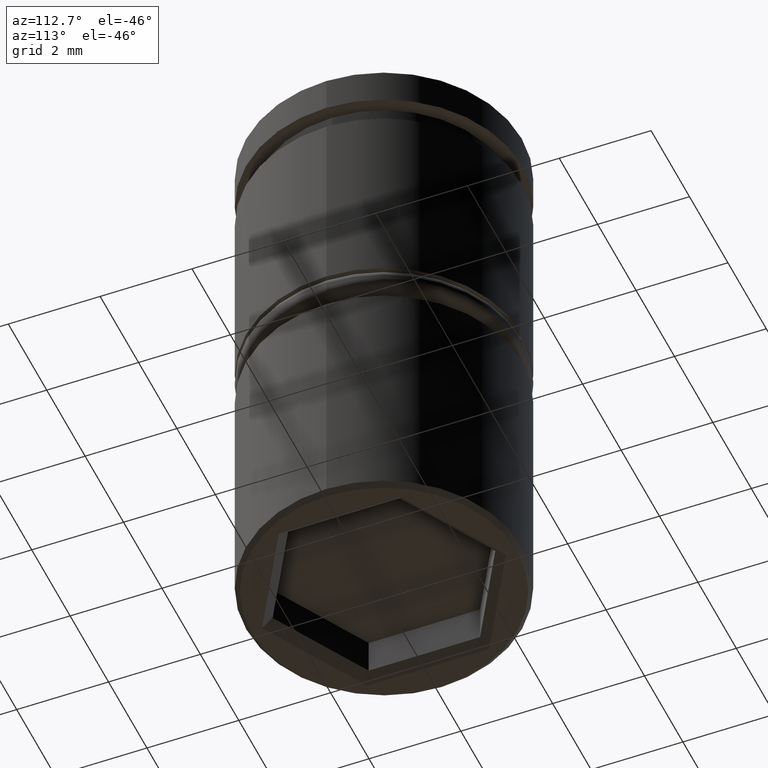
[diagram: clean part render]
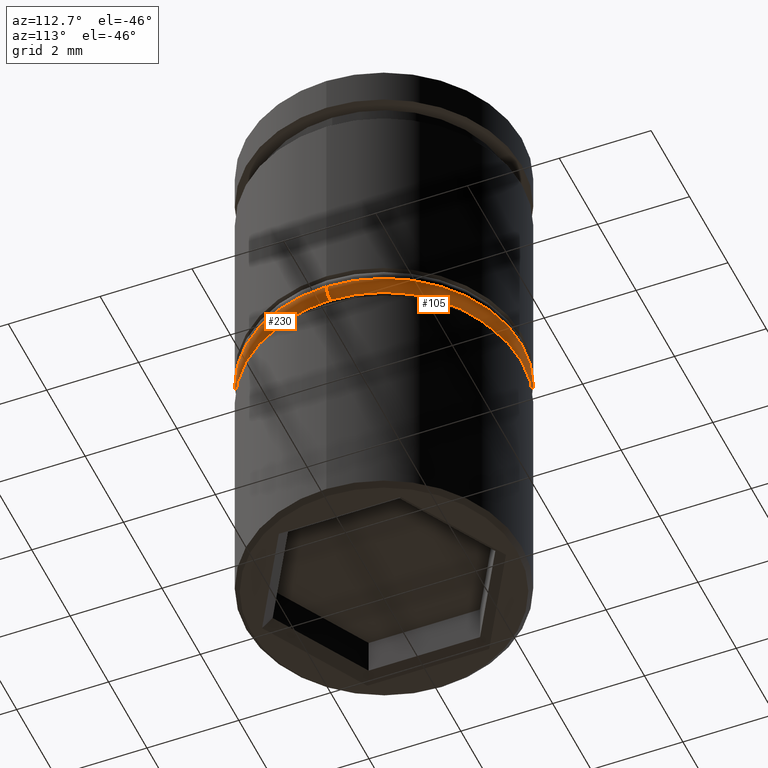
[diagram: same view with one multi-face feature highlighted, each face labeled with its STEP entity id]
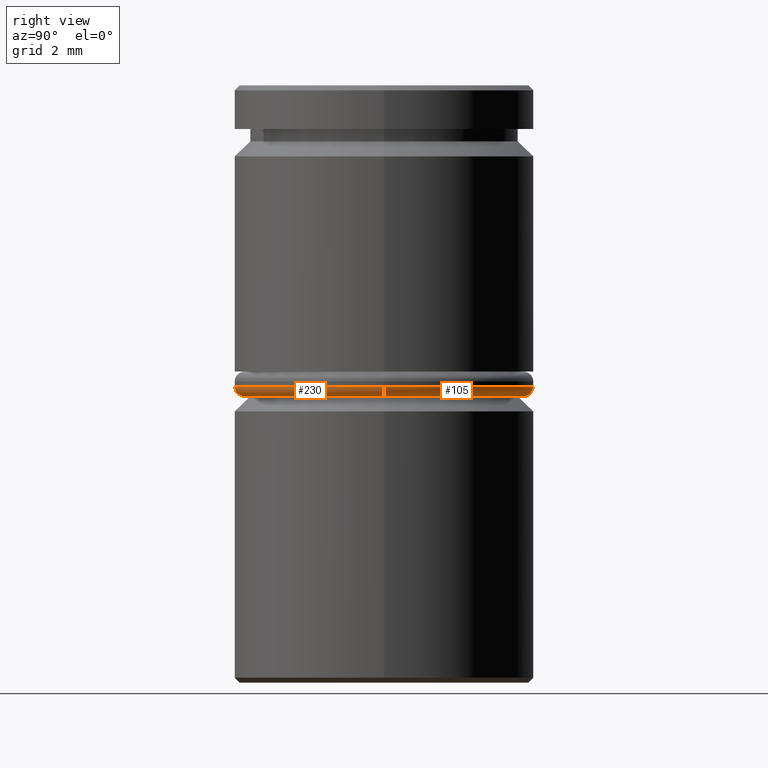
[diagram: same view with one multi-face feature highlighted, each face labeled with its STEP entity id]
A machine part, auxiliary view. The highlighted faces form ONE feature: a constant-radius fillet chain: 2 tangent blend faces with common blend radius 0.2 mm. The faces share edges in the B-rep.
A second angle (right view) of the same feature is appended — it is thin or edge-on in the first view.
Their STEP definitions:
[1] entity #230 (Torus):
#9 = AXIS2_PLACEMENT_3D ( 'NONE', #42, #300, #332 ) ;
#42 = CARTESIAN_POINT ( 'NONE',  ( 0.000000000000000000, 0.000000000000000000, -6.049999999999999822 ) ) ;
#47 = CARTESIAN_POINT ( 'NONE',  ( 0.000000000000000000, 0.000000000000000000, -6.049999999999999822 ) ) ;
#50 = CARTESIAN_POINT ( 'NONE',  ( 0.000000000000000000, 0.000000000000000000, -6.249999999999999112 ) ) ;
#73 = AXIS2_PLACEMENT_3D ( 'NONE', #1083, #538, #627 ) ;
#91 = DIRECTION ( 'NONE',  ( 0.000000000000000000, 0.000000000000000000, -1.000000000000000000 ) ) ;
#145 = DIRECTION ( 'NONE',  ( 1.000000000000000000, 0.000000000000000000, 0.000000000000000000 ) ) ;
#212 = CARTESIAN_POINT ( 'NONE',  ( -2.800000000000000266, 3.551475717527324325E-16, -6.249999999999999112 ) ) ;
#230 = ADVANCED_FACE ( 'NONE', ( #239 ), #367, .T. ) ;
#239 = FACE_OUTER_BOUND ( 'NONE', #1045, .T. ) ;
#262 = AXIS2_PLACEMENT_3D ( 'NONE', #50, #596, #145 ) ;
#300 = DIRECTION ( 'NONE',  ( 0.000000000000000000, 0.000000000000000000, 1.000000000000000000 ) ) ;
#303 = EDGE_CURVE ( 'NONE', #1117, #1158, #771, .T. ) ;
#332 = DIRECTION ( 'NONE',  ( 1.000000000000000000, 0.000000000000000000, 0.000000000000000000 ) ) ;
#340 = ORIENTED_EDGE ( 'NONE', *, *, #686, .F. ) ;
#367 = TOROIDAL_SURFACE ( 'NONE', #9, 2.800000000000000266, 0.2000000000000000111 ) ;
#379 = CARTESIAN_POINT ( 'NONE',  ( 2.800000000000000266, 0.000000000000000000, -6.049999999999999822 ) ) ;
#410 = DIRECTION ( 'NONE',  ( 0.000000000000000000, 0.000000000000000000, 1.000000000000000000 ) ) ;
#427 = CIRCLE ( 'NONE', #576, 3.000000000000000444 ) ;
#436 = ORIENTED_EDGE ( 'NONE', *, *, #303, .F. ) ;
#464 = CIRCLE ( 'NONE', #731, 0.1999999999999996503 ) ;
#480 = CIRCLE ( 'NONE', #73, 0.2000000000000000944 ) ;
#538 = DIRECTION ( 'NONE',  ( 1.224646799147353207E-16, 1.000000000000000000, -0.000000000000000000 ) ) ;
#551 = DIRECTION ( 'NONE',  ( 0.000000000000000000, -1.000000000000000000, 0.000000000000000000 ) ) ;
#562 = EDGE_CURVE ( 'NONE', #572, #777, #427, .T. ) ;
#572 = VERTEX_POINT ( 'NONE', #846 ) ;
#576 = AXIS2_PLACEMENT_3D ( 'NONE', #47, #410, #942 ) ;
#596 = DIRECTION ( 'NONE',  ( -0.000000000000000000, -0.000000000000000000, -1.000000000000000000 ) ) ;
#627 = DIRECTION ( 'NONE',  ( -1.000000000000000000, 1.224646799147353207E-16, 0.000000000000000000 ) ) ;
#686 = EDGE_CURVE ( 'NONE', #1158, #572, #480, .T. ) ;
#702 = CARTESIAN_POINT ( 'NONE',  ( 3.000000000000000444, 0.000000000000000000, -6.049999999999999822 ) ) ;
#731 = AXIS2_PLACEMENT_3D ( 'NONE', #379, #551, #91 ) ;
#771 = CIRCLE ( 'NONE', #262, 2.800000000000000266 ) ;
#777 = VERTEX_POINT ( 'NONE', #702 ) ;
#825 = EDGE_CURVE ( 'NONE', #1117, #777, #464, .T. ) ;
#846 = CARTESIAN_POINT ( 'NONE',  ( -3.000000000000000444, 3.673940397442060361E-16, -6.049999999999999822 ) ) ;
#942 = DIRECTION ( 'NONE',  ( 1.000000000000000000, 0.000000000000000000, 0.000000000000000000 ) ) ;
#952 = ORIENTED_EDGE ( 'NONE', *, *, #562, .F. ) ;
#1032 = CARTESIAN_POINT ( 'NONE',  ( 2.800000000000000266, 0.000000000000000000, -6.249999999999999112 ) ) ;
#1045 = EDGE_LOOP ( 'NONE', ( #340, #436, #1167, #952 ) ) ;
#1083 = CARTESIAN_POINT ( 'NONE',  ( -2.800000000000000266, 3.429011037612589276E-16, -6.049999999999999822 ) ) ;
#1117 = VERTEX_POINT ( 'NONE', #1032 ) ;
#1158 = VERTEX_POINT ( 'NONE', #212 ) ;
#1167 = ORIENTED_EDGE ( 'NONE', *, *, #825, .T. ) ;
[2] entity #105 (Torus):
#43 = DIRECTION ( 'NONE',  ( 0.000000000000000000, 0.000000000000000000, 1.000000000000000000 ) ) ;
#73 = AXIS2_PLACEMENT_3D ( 'NONE', #1083, #538, #627 ) ;
#91 = DIRECTION ( 'NONE',  ( 0.000000000000000000, 0.000000000000000000, -1.000000000000000000 ) ) ;
#105 = ADVANCED_FACE ( 'NONE', ( #909 ), #765, .T. ) ;
#116 = EDGE_LOOP ( 'NONE', ( #176, #384, #386, #445 ) ) ;
#122 = CARTESIAN_POINT ( 'NONE',  ( 0.000000000000000000, 0.000000000000000000, -6.049999999999999822 ) ) ;
#176 = ORIENTED_EDGE ( 'NONE', *, *, #312, .F. ) ;
#178 = CARTESIAN_POINT ( 'NONE',  ( 0.000000000000000000, 0.000000000000000000, -6.049999999999999822 ) ) ;
#212 = CARTESIAN_POINT ( 'NONE',  ( -2.800000000000000266, 3.551475717527324325E-16, -6.249999999999999112 ) ) ;
#312 = EDGE_CURVE ( 'NONE', #1158, #1117, #573, .T. ) ;
#379 = CARTESIAN_POINT ( 'NONE',  ( 2.800000000000000266, 0.000000000000000000, -6.049999999999999822 ) ) ;
#384 = ORIENTED_EDGE ( 'NONE', *, *, #686, .T. ) ;
#386 = ORIENTED_EDGE ( 'NONE', *, *, #1025, .F. ) ;
#405 = AXIS2_PLACEMENT_3D ( 'NONE', #178, #723, #634 ) ;
#445 = ORIENTED_EDGE ( 'NONE', *, *, #825, .F. ) ;
#464 = CIRCLE ( 'NONE', #731, 0.1999999999999996503 ) ;
#480 = CIRCLE ( 'NONE', #73, 0.2000000000000000944 ) ;
#538 = DIRECTION ( 'NONE',  ( 1.224646799147353207E-16, 1.000000000000000000, -0.000000000000000000 ) ) ;
#551 = DIRECTION ( 'NONE',  ( 0.000000000000000000, -1.000000000000000000, 0.000000000000000000 ) ) ;
#572 = VERTEX_POINT ( 'NONE', #846 ) ;
#573 = CIRCLE ( 'NONE', #666, 2.800000000000000266 ) ;
#597 = DIRECTION ( 'NONE',  ( 1.000000000000000000, 0.000000000000000000, 0.000000000000000000 ) ) ;
#615 = CIRCLE ( 'NONE', #862, 3.000000000000000444 ) ;
#627 = DIRECTION ( 'NONE',  ( -1.000000000000000000, 1.224646799147353207E-16, 0.000000000000000000 ) ) ;
#634 = DIRECTION ( 'NONE',  ( 1.000000000000000000, 0.000000000000000000, 0.000000000000000000 ) ) ;
#636 = DIRECTION ( 'NONE',  ( 1.000000000000000000, 0.000000000000000000, 0.000000000000000000 ) ) ;
#666 = AXIS2_PLACEMENT_3D ( 'NONE', #1091, #798, #636 ) ;
#686 = EDGE_CURVE ( 'NONE', #1158, #572, #480, .T. ) ;
#702 = CARTESIAN_POINT ( 'NONE',  ( 3.000000000000000444, 0.000000000000000000, -6.049999999999999822 ) ) ;
#723 = DIRECTION ( 'NONE',  ( 0.000000000000000000, 0.000000000000000000, 1.000000000000000000 ) ) ;
#731 = AXIS2_PLACEMENT_3D ( 'NONE', #379, #551, #91 ) ;
#765 = TOROIDAL_SURFACE ( 'NONE', #405, 2.800000000000000266, 0.2000000000000000111 ) ;
#777 = VERTEX_POINT ( 'NONE', #702 ) ;
#798 = DIRECTION ( 'NONE',  ( -0.000000000000000000, -0.000000000000000000, -1.000000000000000000 ) ) ;
#825 = EDGE_CURVE ( 'NONE', #1117, #777, #464, .T. ) ;
#846 = CARTESIAN_POINT ( 'NONE',  ( -3.000000000000000444, 3.673940397442060361E-16, -6.049999999999999822 ) ) ;
#862 = AXIS2_PLACEMENT_3D ( 'NONE', #122, #43, #597 ) ;
#909 = FACE_OUTER_BOUND ( 'NONE', #116, .T. ) ;
#1025 = EDGE_CURVE ( 'NONE', #777, #572, #615, .T. ) ;
#1032 = CARTESIAN_POINT ( 'NONE',  ( 2.800000000000000266, 0.000000000000000000, -6.249999999999999112 ) ) ;
#1083 = CARTESIAN_POINT ( 'NONE',  ( -2.800000000000000266, 3.429011037612589276E-16, -6.049999999999999822 ) ) ;
#1091 = CARTESIAN_POINT ( 'NONE',  ( 0.000000000000000000, 0.000000000000000000, -6.249999999999999112 ) ) ;
#1117 = VERTEX_POINT ( 'NONE', #1032 ) ;
#1158 = VERTEX_POINT ( 'NONE', #212 ) ;